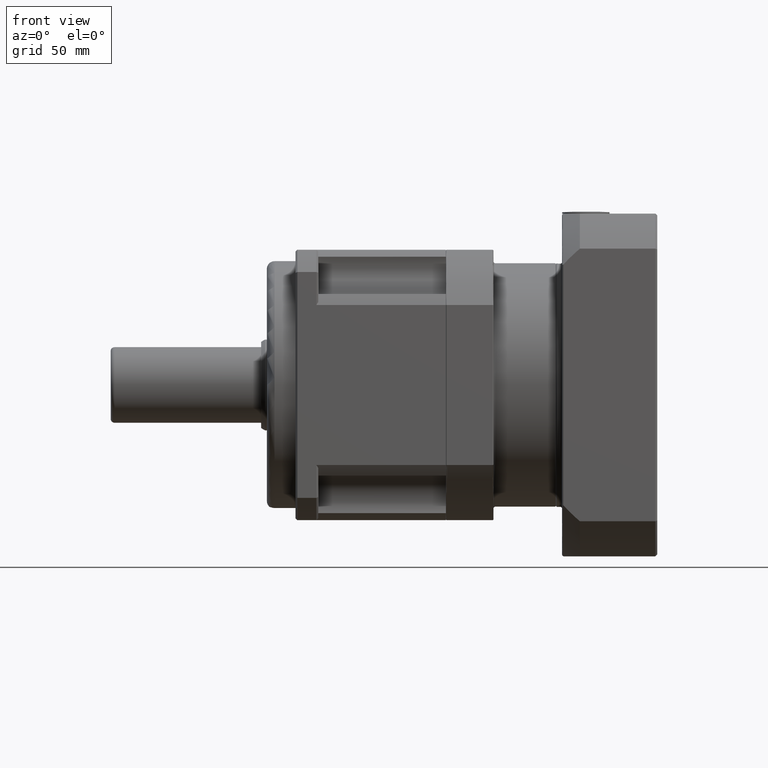
[diagram: clean part render]
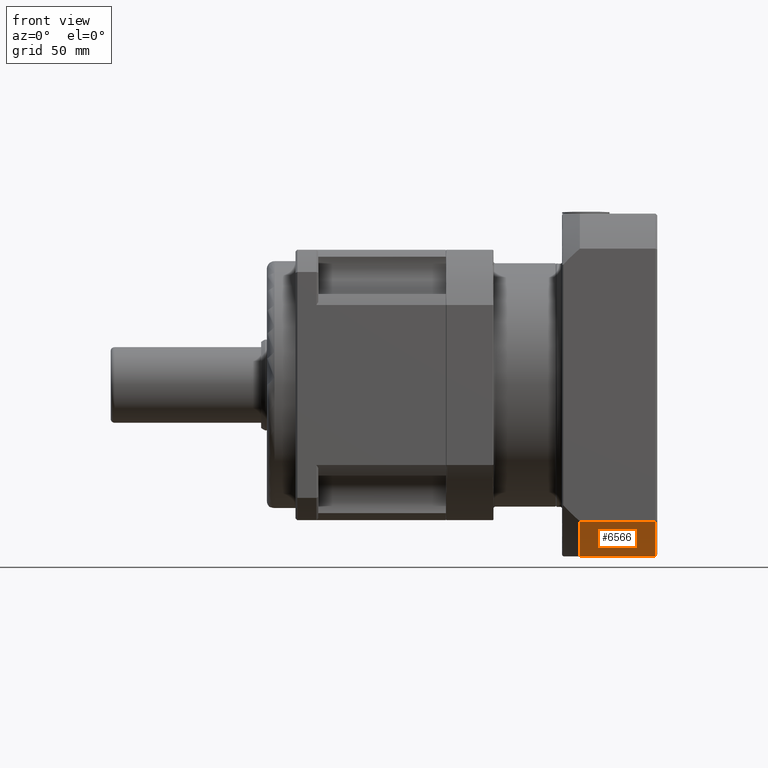
[diagram: same view with one face highlighted and labeled with its STEP entity id]
A machine part, front view. The second image highlights one B-rep face of the part: STEP entity #6566.
In plain terms, the highlighted cylindrical surface (partial cylindrical patch) has radius 115 mm, axis along (-1, 0, 0).
Its self-contained STEP definition (entity closure, byte-faithful):
#255=LINE('',#10319,#563);
#278=LINE('',#10622,#586);
#563=VECTOR('',#8166,39.6217782649107);
#586=VECTOR('',#8369,39.6217782649107);
#1297=CYLINDRICAL_SURFACE('',#7190,115.);
#1758=FACE_OUTER_BOUND('',#2297,.T.);
#2297=EDGE_LOOP('',(#5119,#5120,#5121,#5122));
#2814=CIRCLE('',#7135,115.);
#2819=CIRCLE('',#7148,115.);
#3212=VERTEX_POINT('',#10316);
#3213=VERTEX_POINT('',#10318);
#3279=VERTEX_POINT('',#10538);
#3283=VERTEX_POINT('',#10611);
#3863=EDGE_CURVE('',#3212,#3213,#255,.T.);
#3949=EDGE_CURVE('',#3213,#3279,#2814,.T.);
#3958=EDGE_CURVE('',#3212,#3283,#2819,.T.);
#3963=EDGE_CURVE('',#3279,#3283,#278,.T.);
#5119=ORIENTED_EDGE('',*,*,#3949,.F.);
#5120=ORIENTED_EDGE('',*,*,#3863,.F.);
#5121=ORIENTED_EDGE('',*,*,#3958,.T.);
#5122=ORIENTED_EDGE('',*,*,#3963,.F.);
#6566=ADVANCED_FACE('',(#1758),#1297,.T.);
#7135=AXIS2_PLACEMENT_3D('',#10549,#8329,#8330);
#7148=AXIS2_PLACEMENT_3D('',#10613,#8356,#8357);
#7190=AXIS2_PLACEMENT_3D('',#10667,#8443,#8444);
#8166=DIRECTION('',(1.,-5.21329617097221E-16,-1.24115431662697E-16));
#8329=DIRECTION('center_axis',(1.,-5.21329617097221E-16,-1.24115431662697E-16));
#8330=DIRECTION('ref_axis',(-1.24115431662696E-16,1.74686654030804E-15,
-1.));
#8356=DIRECTION('center_axis',(1.,-5.21329617097221E-16,-1.24115431662697E-16));
#8357=DIRECTION('ref_axis',(-1.24115431662696E-16,1.74686654030804E-15,
-1.));
#8369=DIRECTION('',(-1.,5.21329617097221E-16,1.24115431662697E-16));
#8443=DIRECTION('center_axis',(-1.,5.21329617097221E-16,1.24115431662697E-16));
#8444=DIRECTION('ref_axis',(-1.24115431662696E-16,1.74686654030804E-15,
-1.));
#10316=CARTESIAN_POINT('',(-101.181163537748,-240.310004596179,-148.591631309314));
#10318=CARTESIAN_POINT('',(-61.5593852728372,-240.310004596179,-148.591631309314));
#10319=CARTESIAN_POINT('',(-60.5593852728371,-240.310004596179,-148.591631309314));
#10538=CARTESIAN_POINT('',(-61.5593852728371,-221.899109912561,-167.002525992933));
#10549=CARTESIAN_POINT('Origin',(-61.5593852728371,-150.310004596179,-77.0025259929324));
#10611=CARTESIAN_POINT('',(-101.181163537748,-221.899109912561,-167.002525992933));
#10613=CARTESIAN_POINT('Origin',(-101.181163537748,-150.310004596179,-77.0025259929324));
#10622=CARTESIAN_POINT('',(-60.5593852728371,-221.899109912561,-167.002525992933));
#10667=CARTESIAN_POINT('Origin',(-60.5593852728371,-150.310004596179,-77.0025259929324));